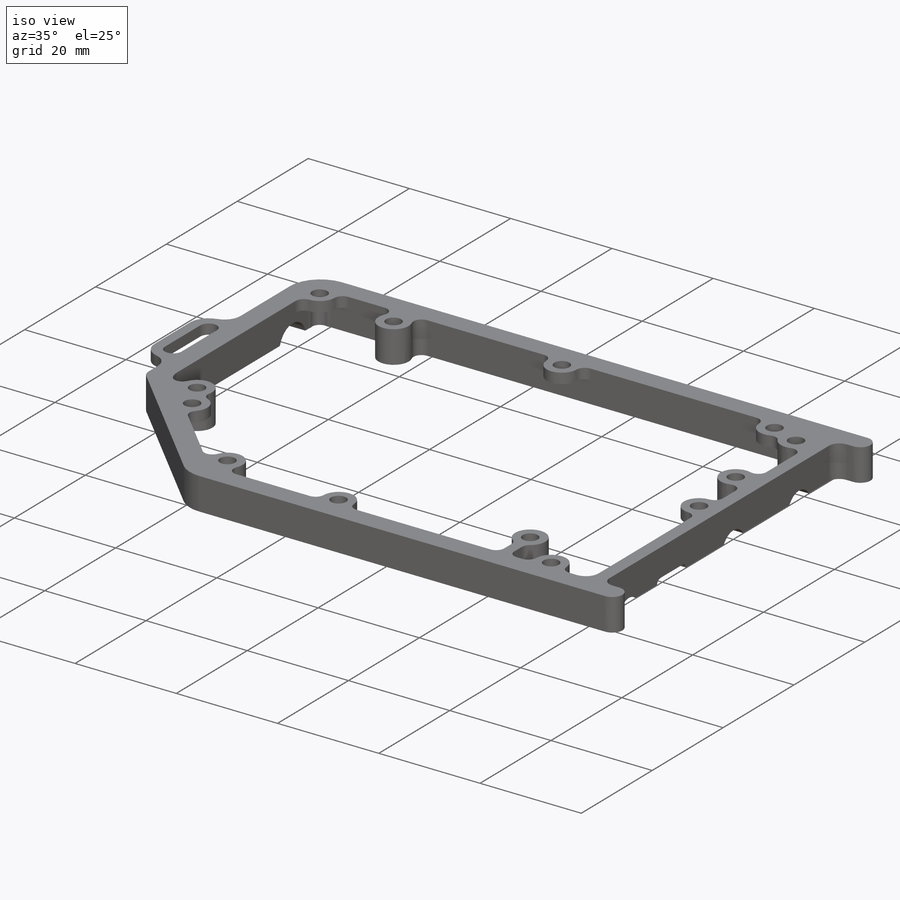
[diagram: iso view]
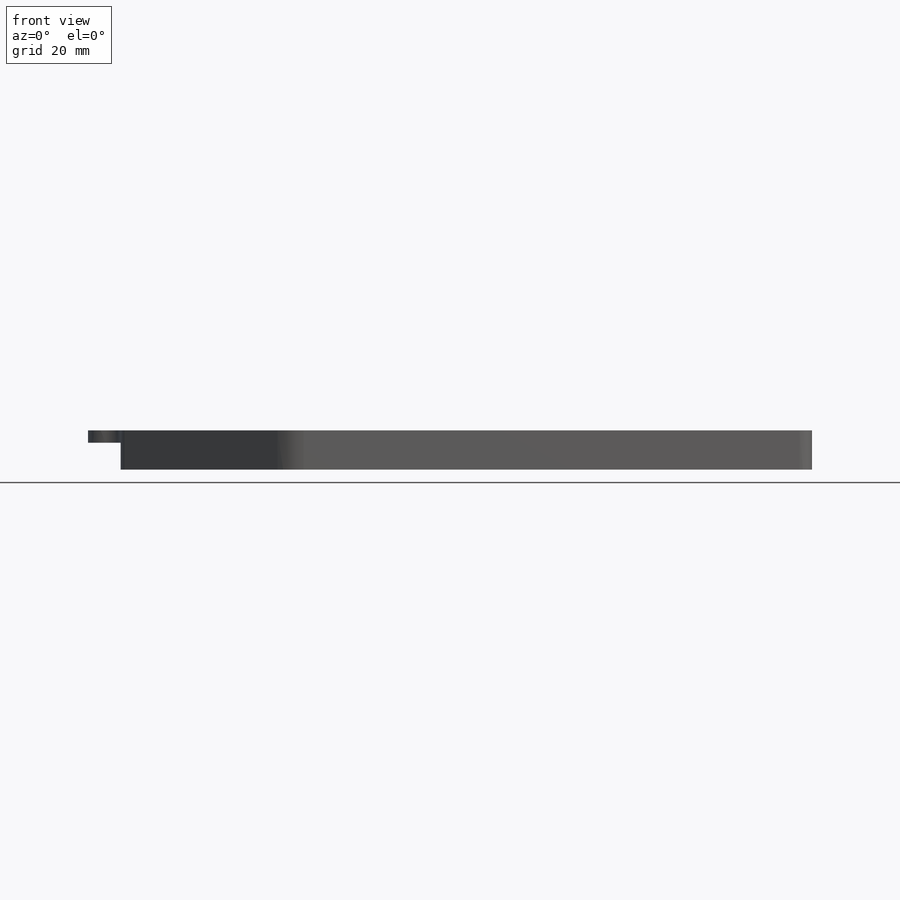
[diagram: front view]
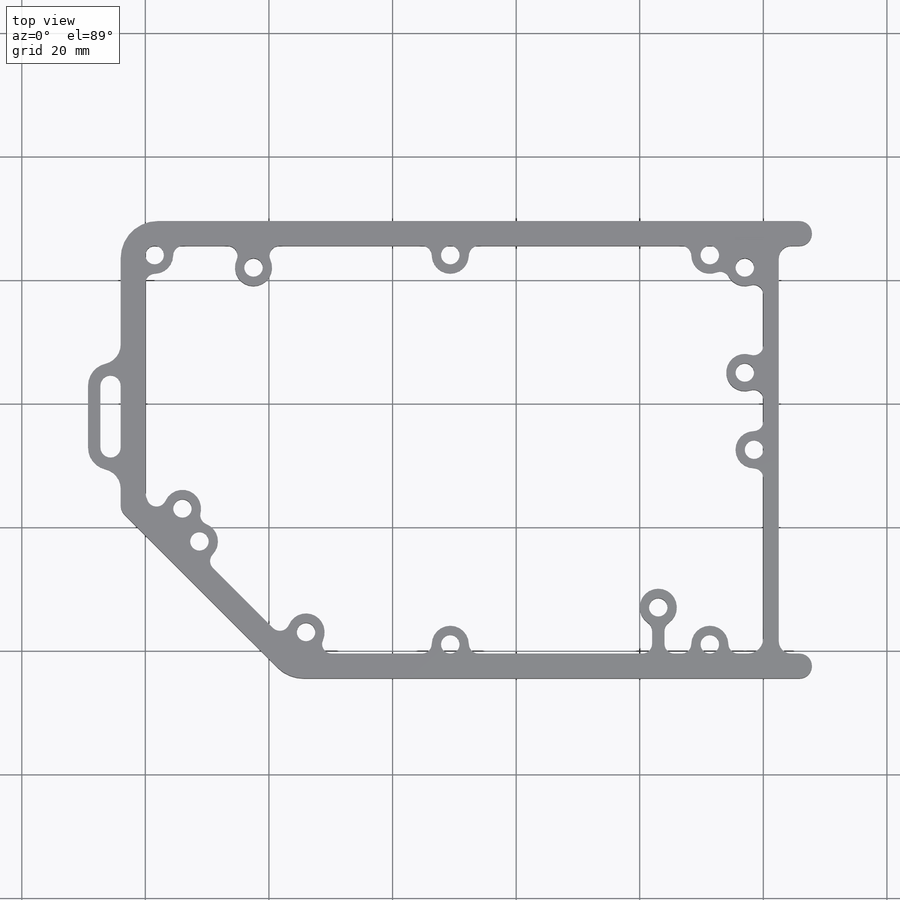
[diagram: top view]
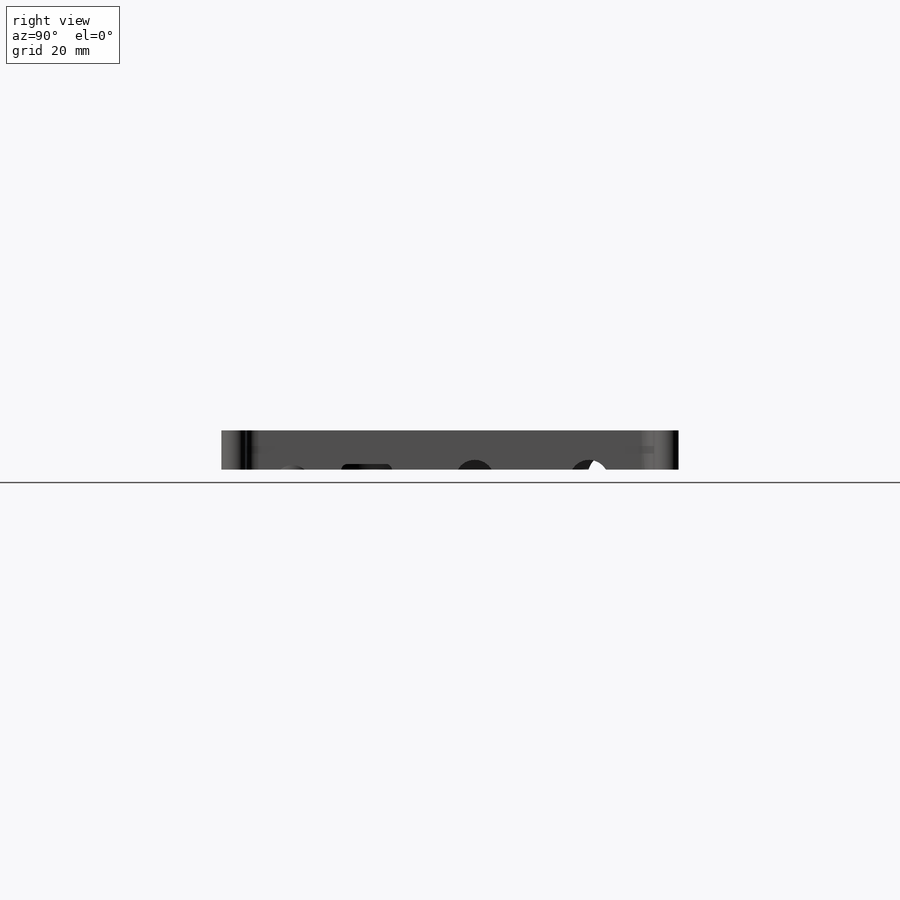
[diagram: right view]
SOLIDWORKS PART (.sldprt)
format: sldprt  version: not decoded by parser v0  size: 538,112 bytes
history: native  units: mm
features: sketch x9, extrude x5, cut_extrude x4, material x1 (+11 scaffold rows collapsed)
feature tree (30):
  scaffold x11  (default folders/planes/origin — collapsed)
  material  "Material <not specified>"
  sketch  "Sketch1"  dims[D1=0.0mm D2=0.0mm]
  extrude  "Boss-Extrude1"  Depth=6.35mm
  sketch  "Sketch2"  dims[c1.D1=3.275mm c1.D2=10.0mm c1.D3=26.0mm c1.D4=2.0mm c2.D1=3.275mm]
  extrude  "Boss-Extrude2"  Depth=2mm
  sketch  "Sketch3"  dims[D1=3.0mm]
  extrude  "Boss-Extrude3"  [1 undecoded]
  sketch  "Sketch4"  dims[D1=2.0mm]
  extrude  "Boss-Extrude4"  [1 undecoded]
  sketch  "Sketch5"  dims[D1=3.0mm]
  cut_extrude  "Cut-Extrude1"  [1 undecoded]
  sketch  "Sketch7"
  extrude  "Boss-Extrude5"  Depth=0.5mm
  sketch  "Sketch8"  dims[D1=3.0mm]
  cut_extrude  "Cut-Extrude2"  [1 undecoded]
  sketch  "Sketch9"  dims[D1=0.0mm]
  cut_extrude  "Cut-Extrude3"  Depth=12.5mm
  sketch  "Sketch10"
  cut_extrude  "Cut-Extrude4"  Depth=12.5mm
decode coverage: 12 of 18 modeling features carry decoded parameters
note: 4 parameter values undecoded
summary: no parameter record found for 4 features
note: suppression state not decoded; provenance and decode notes live in map.json
